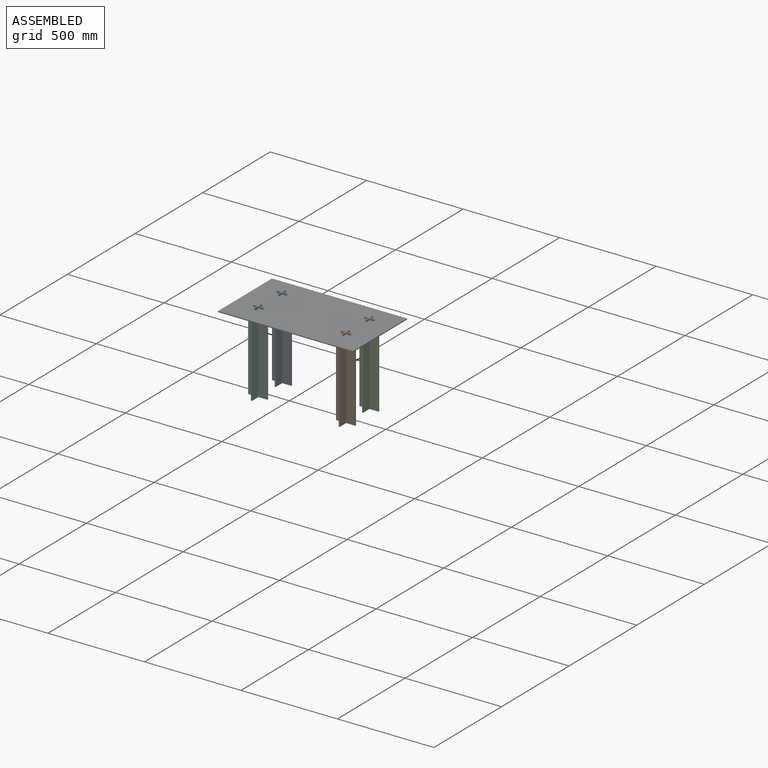
[diagram: assembled view]
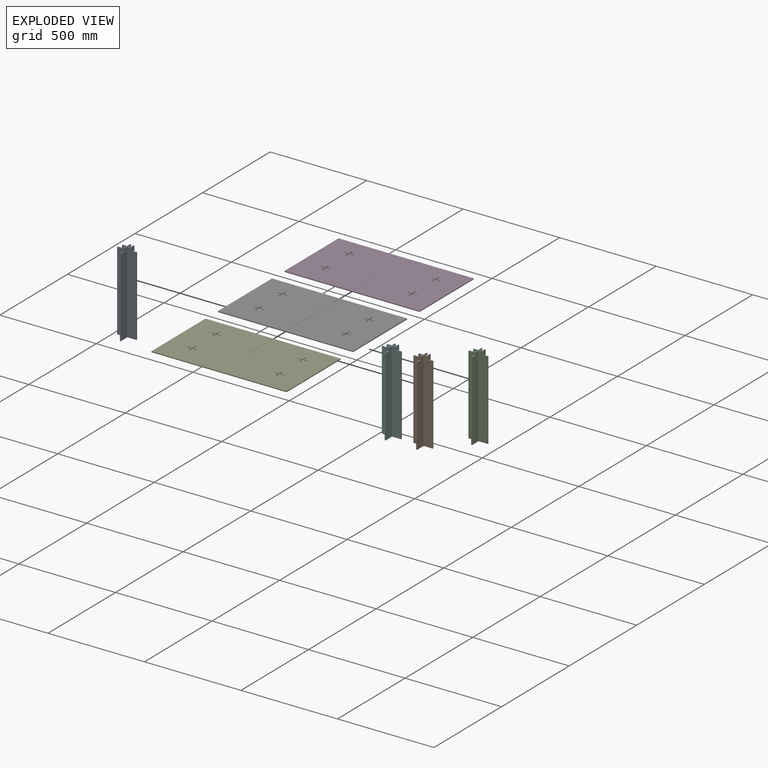
[diagram: exploded view]
GUIDED TOUR — MATED ASSEMBLY WITH SUBASSEMBLIES (Onshape document 4f906f8c0d8d849d14eea6be, AutoMate assembly 4f906f8c0d8d849d14eea6be_8393cce24d289e3eb619da18_ee5d5267eabd200aae0d3cd7_default)

This assembly has 11 component occurrences arranged in 7 top-level units: 3 individual components plus 4 subassemblies (S0, S1, S2, S3). The tour has two levels: first the top level, where each subassembly is treated as one rigid unit; then each subassembly is toured internally in its own section (nesting deeper than one subassembly level is flattened into its subassembly's section).

Components are labeled P0..P10 across the whole record; subassembly units are labeled S0..S3. A mate is a constraint between two units; its type names the relative motion it leaves free:
  FASTENED — locks the two components together rigidly (no relative motion),
  SLIDER — leaves translation along the listed axis free.
Axis/direction vectors are unit vectors and 'through' points are millimeter coordinates, both in the assembly's world frame.

TOP-LEVEL MATES (between units; each subassembly's internal mates are listed in its own section)
  1. SLIDER "Slider 1": S3 <-> P5, axis (0.000, 0.000, 1.000) through (-558.69, -146.63, 195.63) mm
  2. SLIDER "Slider 3": S2 <-> P5, axis (0.000, 0.000, 1.000) through (-103.69, 25.87, 195.63) mm
  3. SLIDER "Slider 2": S0 <-> P5, axis (0.000, 0.000, 1.000) through (-558.69, 25.87, 195.63) mm
  4. SLIDER "Slider 4": S1 <-> P5, axis (0.000, 0.000, 1.000) through (-103.69, -146.63, 195.63) mm

TOP-LEVEL ASSEMBLY ORDER
  1. P10 — the base component [order verified]
  2. P5 [order verified]
  3. P3 [order verified]
  4. S3 [order verified]
  5. S1 [order verified]
  6. S2 [order verified]
  7. S0 [order verified]
Order-tag legend:
  [order verified] — this step's position reverses a verified removal order: the component was checked to insert without passing through the ones already placed.

Of the 11 component occurrences, 11 carry the full construction recipe — the FeatureScript program that regenerates the part's solid from scratch; the rest are supplied as boundary geometry only. Each toured unit is shown spotlighted twice — assembled, then exploded with a leader line back to its socket (green = recipe-attached component, orange = geometry-only, blue = subassembly unit; the rest desaturated gray).
NOTE — document 2 of 2 of this assembly tour. The two overview renders and the header above are repeated from document 1; the component sections below continue where the previous document stopped.
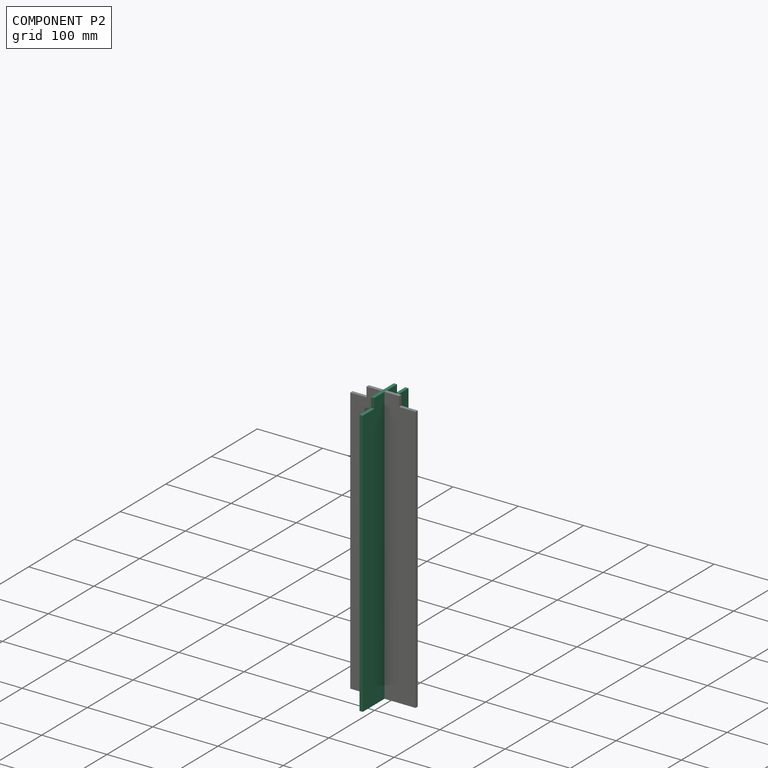
[diagram: component P2 — assembled]
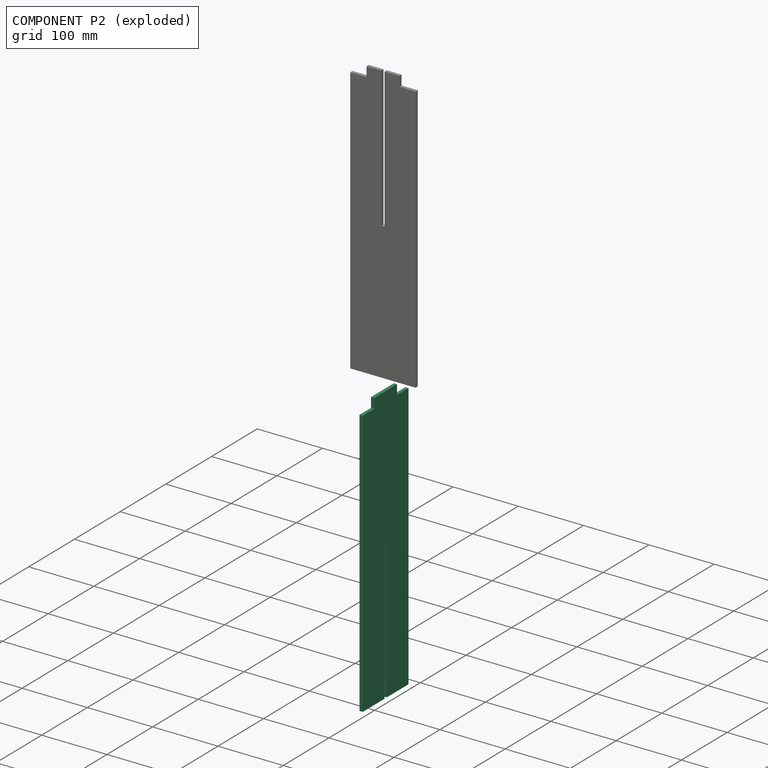
[diagram: component P2 — exploded]
COMPONENT P2 — recipe-attached (CADFS 00645660, mesh-verified: the recipe's output STEP matches this component's geometry to below the mesh-comparison resolution (tessellation chordal tolerance ~0.655 mm)).
Held by: FASTENED mate "Fastened 1" to P4; FASTENED mate "Fastened 1" to P4.
Construction recipe (FeatureScript — the CAD program that rebuilds this solid; sketch coordinates are in the units given by the * unit suffixes, e.g. mm):

FeatureScript 1511;
import(path : "onshape/std/geometry.fs", version : "1511.0");
import(path : "onshape/std/common.fs", version : "1511.0");
const mm = millimeter;
const VERTEX = EntityType.VERTEX;
const EDGE = EntityType.EDGE;
const FACE = EntityType.FACE;
const BODY = EntityType.BODY;
function v(x, y){return vector(x, y);}
function OD(order){return orderDisambiguation(order);}
function OSD(set){return originalSetDisambiguation(set);}
function TD(topology){return topologyDisambiguation(topology);}
function TDD(query){return trueDependencyDisambiguation(query);}
function sQuery(a, b, c) {return sketchEntityQuery(a, b, c);}

annotation { "Feature Type Name" : "Feature", "Feature Type Description" : "" }
export const myFeature = defineFeature(function(context is Context, id is Id, definition is map)
    precondition{}
    {
        {
            var Q0;
            Q0=qCreatedBy(makeId("Right.planeOp"),FACE);
            var sketch = newSketch(context, id + "F0", { "sketchPlane" : qUnion([Q0])});
            skLineSegment(sketch, "E0.top", {"start": v(0, 410) * mm, "end": v(-25, 410) * mm});
            skLineSegment(sketch, "E0.left", {"start": v(0, 0) * mm, "end": v(0, 410) * mm});
            skLineSegment(sketch, "E0.right", {"start": v(-100, 0) * mm, "end": v(-100, 410) * mm});
            skLineSegment(sketch, "E1.top", {"start": v(-75, 425) * mm, "end": v(-25, 425) * mm});
            skLineSegment(sketch, "E1.left", {"start": v(-75, 410) * mm, "end": v(-75, 425) * mm});
            skLineSegment(sketch, "E1.right", {"start": v(-25, 410) * mm, "end": v(-25, 425) * mm});
            skLineSegment(sketch, "E2", {"start": v(-100, 0) * mm, "end": v(-52.5, 0) * mm});
            skLineSegment(sketch, "E3.trimOffspring", {"start": v(-75, 410) * mm, "end": v(-100, 410) * mm});
            skPoint(sketch, "E4.oppositeSnap0", {"position": v(-50, 0) * mm});
            skLineSegment(sketch, "E4.bottom", {"start": v(-50, 0) * mm, "end": v(-50, 0) * mm});
            skLineSegment(sketch, "E5.top", {"start": v(-52.5, 210) * mm, "end": v(-47.5, 210) * mm});
            skLineSegment(sketch, "E5.left", {"start": v(-52.5, 0) * mm, "end": v(-52.5, 210) * mm});
            skLineSegment(sketch, "E5.right", {"start": v(-47.5, 0) * mm, "end": v(-47.5, 210) * mm});
            skLineSegment(sketch, "E6.trimOffspring", {"start": v(-47.5, 0) * mm, "end": v(0, 0) * mm});
            skSolve(sketch);
        }
        {
            var Q0;
            Q0=makeQuery(id+"F0.imprint","IMPRINT",FACE,{"disambiguationData":[TD([[makeQuery(id+"F0.imprint","IMPRINT",EDGE,{"derivedFrom":sQuery(id+"F0.wireOp",EDGE,"E0.top")}),1.0]])]});
            extrude(context, id + "F1", {"entities" : qUnion([Q0]), "depth" : 5 * mm, "offsetDistance" : 25 * mm});
        }
    });
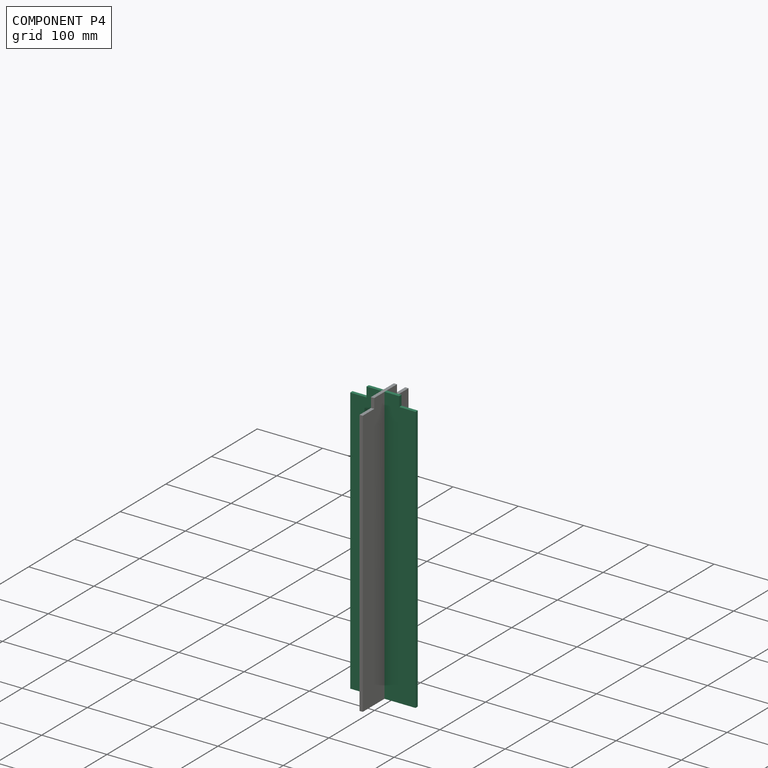
[diagram: component P4 — assembled]
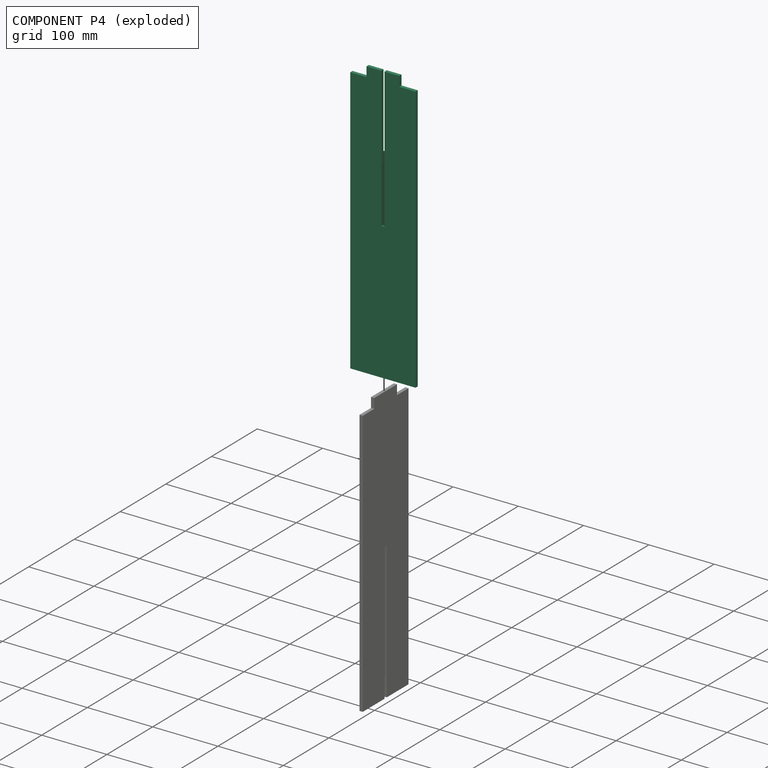
[diagram: component P4 — exploded]
COMPONENT P4 — recipe-attached (CADFS 00645660, mesh-verified: the recipe's output STEP matches this component's geometry to below the mesh-comparison resolution (tessellation chordal tolerance ~0.655 mm)).
Held by: FASTENED mate "Fastened 1" to P2; FASTENED mate "Fastened 1" to P2.
Construction recipe (FeatureScript — the CAD program that rebuilds this solid; sketch coordinates are in the units given by the * unit suffixes, e.g. mm):

FeatureScript 1511;
import(path : "onshape/std/geometry.fs", version : "1511.0");
import(path : "onshape/std/common.fs", version : "1511.0");
const mm = millimeter;
const VERTEX = EntityType.VERTEX;
const EDGE = EntityType.EDGE;
const FACE = EntityType.FACE;
const BODY = EntityType.BODY;
function v(x, y){return vector(x, y);}
function OD(order){return orderDisambiguation(order);}
function OSD(set){return originalSetDisambiguation(set);}
function TD(topology){return topologyDisambiguation(topology);}
function TDD(query){return trueDependencyDisambiguation(query);}
function sQuery(a, b, c) {return sketchEntityQuery(a, b, c);}

annotation { "Feature Type Name" : "Feature", "Feature Type Description" : "" }
export const myFeature = defineFeature(function(context is Context, id is Id, definition is map)
    precondition{}
    {
        {
            var Q0;
            Q0=qCreatedBy(makeId("Right.planeOp"),FACE);
            var sketch = newSketch(context, id + "F0", { "sketchPlane" : qUnion([Q0])});
            skLineSegment(sketch, "E0.top", {"start": v(0, 410) * mm, "end": v(-25, 410) * mm});
            skLineSegment(sketch, "E0.left", {"start": v(0, 0) * mm, "end": v(0, 410) * mm});
            skLineSegment(sketch, "E0.right", {"start": v(-100, 0) * mm, "end": v(-100, 410) * mm});
            skLineSegment(sketch, "E1.top", {"start": v(-75, 425) * mm, "end": v(-25, 425) * mm});
            skLineSegment(sketch, "E1.left", {"start": v(-75, 410) * mm, "end": v(-75, 425) * mm});
            skLineSegment(sketch, "E1.right", {"start": v(-25, 410) * mm, "end": v(-25, 425) * mm});
            skLineSegment(sketch, "E2", {"start": v(-100, 0) * mm, "end": v(-52.5, 0) * mm});
            skLineSegment(sketch, "E3.trimOffspring", {"start": v(-75, 410) * mm, "end": v(-100, 410) * mm});
            skPoint(sketch, "E4.oppositeSnap0", {"position": v(-50, 0) * mm});
            skLineSegment(sketch, "E4.bottom", {"start": v(-50, 0) * mm, "end": v(-50, 0) * mm});
            skLineSegment(sketch, "E5.top", {"start": v(-52.5, 210) * mm, "end": v(-47.5, 210) * mm});
            skLineSegment(sketch, "E5.left", {"start": v(-52.5, 0) * mm, "end": v(-52.5, 210) * mm});
            skLineSegment(sketch, "E5.right", {"start": v(-47.5, 0) * mm, "end": v(-47.5, 210) * mm});
            skLineSegment(sketch, "E6.trimOffspring", {"start": v(-47.5, 0) * mm, "end": v(0, 0) * mm});
            skSolve(sketch);
        }
        {
            var Q0;
            Q0=makeQuery(id+"F0.imprint","IMPRINT",FACE,{"disambiguationData":[TD([[makeQuery(id+"F0.imprint","IMPRINT",EDGE,{"derivedFrom":sQuery(id+"F0.wireOp",EDGE,"E0.top")}),1.0]])]});
            extrude(context, id + "F1", {"entities" : qUnion([Q0]), "depth" : 5 * mm, "offsetDistance" : 25 * mm});
        }
    });
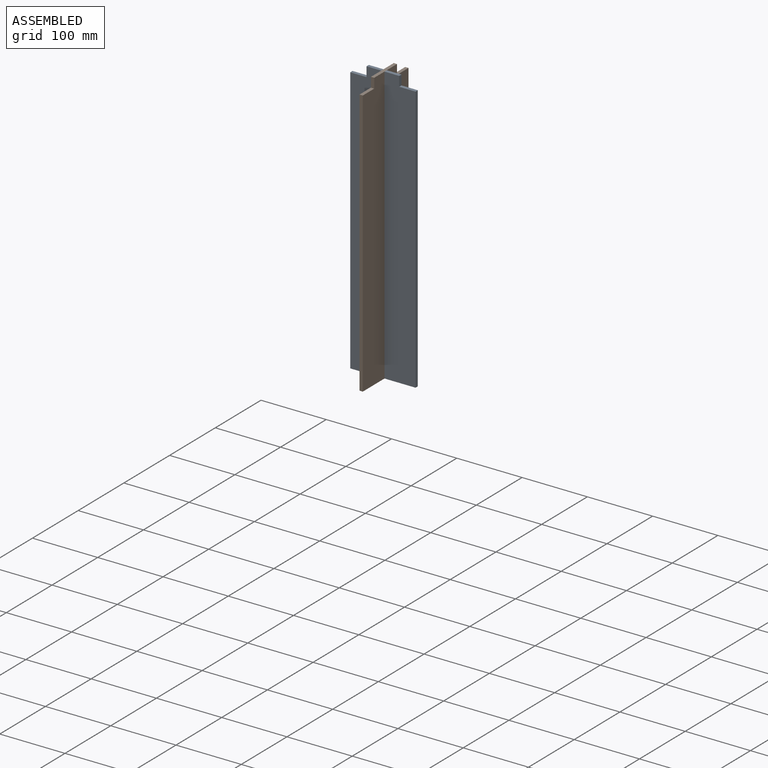
[diagram: subassembly S3 — assembled view]
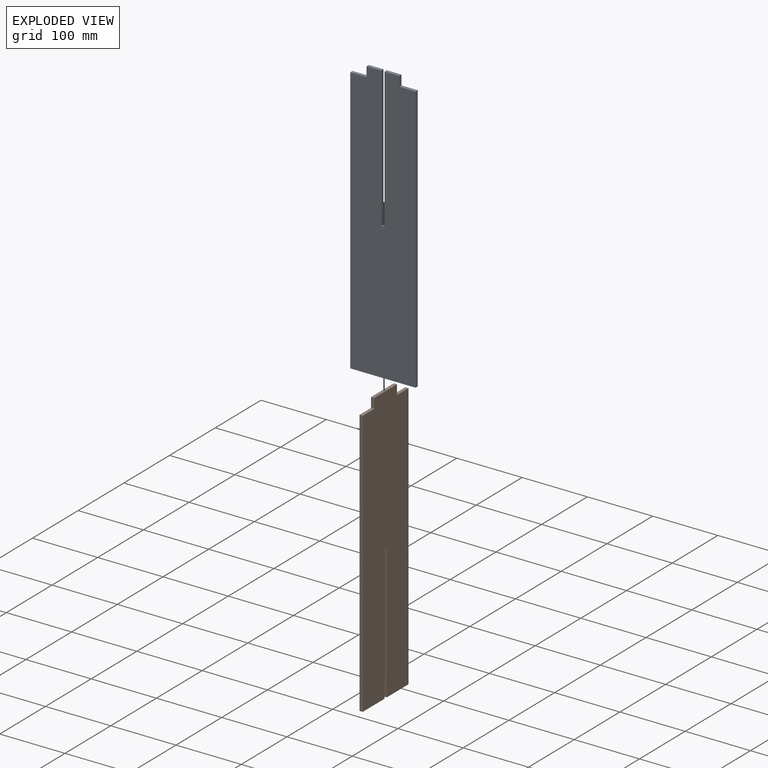
[diagram: subassembly S3 — exploded view]
SUBASSEMBLY S3 TOUR — 2 components, shown here in isolation at its own camera.

INTERNAL MATES
  1. FASTENED "Fastened 1": P7 <-> P8, direction (0.000, 0.000, 1.000) through (-558.69, -146.63, -19.37) mm
  2. FASTENED "Fastened 1": P7 <-> P8, direction (0.000, 0.000, 1.000) through (-558.69, -146.63, -19.37) mm

ASSEMBLY ORDER (within the subassembly)
  1. P7 — the base component [order heuristic]
  2. P8 [order heuristic]
Order-tag legend:
  [order heuristic] — this assembly is geometrically interlocked (no collision-free removal order exists), so components are listed in mate-graph order; insertion feasibility is not verified.
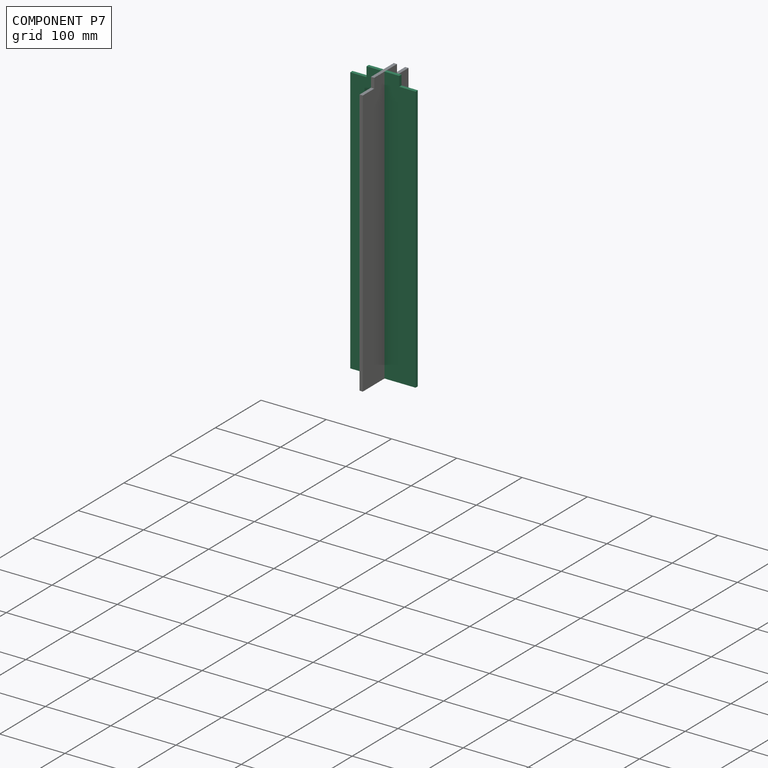
[diagram: component P7 — assembled]
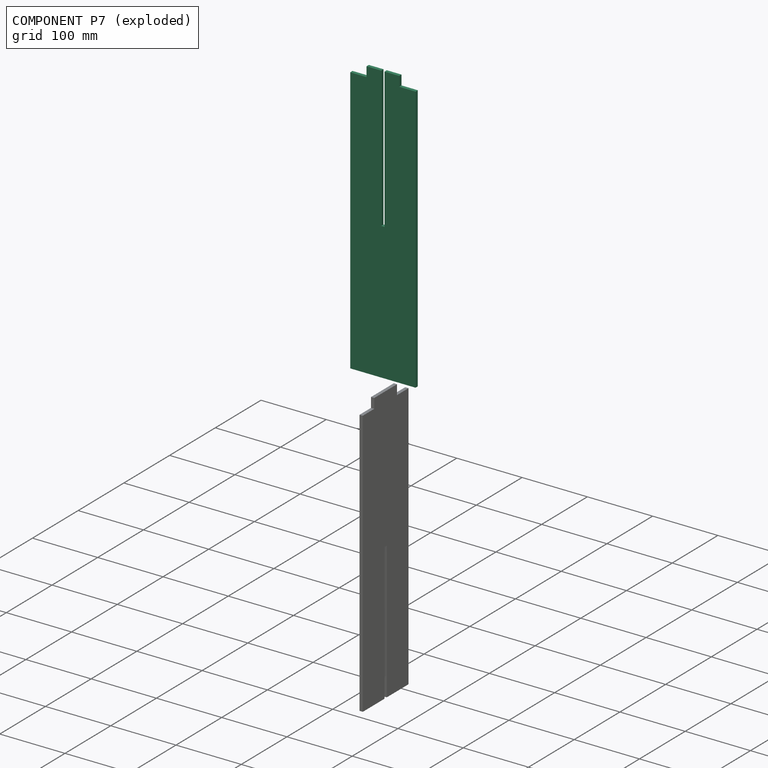
[diagram: component P7 — exploded]
COMPONENT P7 — recipe-attached (CADFS 00645660, mesh-verified: the recipe's output STEP matches this component's geometry to below the mesh-comparison resolution (tessellation chordal tolerance ~0.655 mm)).
Held by: FASTENED mate "Fastened 1" to P8; FASTENED mate "Fastened 1" to P8.
Construction recipe (FeatureScript — the CAD program that rebuilds this solid; sketch coordinates are in the units given by the * unit suffixes, e.g. mm):

FeatureScript 1511;
import(path : "onshape/std/geometry.fs", version : "1511.0");
import(path : "onshape/std/common.fs", version : "1511.0");
const mm = millimeter;
const VERTEX = EntityType.VERTEX;
const EDGE = EntityType.EDGE;
const FACE = EntityType.FACE;
const BODY = EntityType.BODY;
function v(x, y){return vector(x, y);}
function OD(order){return orderDisambiguation(order);}
function OSD(set){return originalSetDisambiguation(set);}
function TD(topology){return topologyDisambiguation(topology);}
function TDD(query){return trueDependencyDisambiguation(query);}
function sQuery(a, b, c) {return sketchEntityQuery(a, b, c);}

annotation { "Feature Type Name" : "Feature", "Feature Type Description" : "" }
export const myFeature = defineFeature(function(context is Context, id is Id, definition is map)
    precondition{}
    {
        {
            var Q0;
            Q0=qCreatedBy(makeId("Right.planeOp"),FACE);
            var sketch = newSketch(context, id + "F0", { "sketchPlane" : qUnion([Q0])});
            skLineSegment(sketch, "E0.top", {"start": v(0, 410) * mm, "end": v(-25, 410) * mm});
            skLineSegment(sketch, "E0.left", {"start": v(0, 0) * mm, "end": v(0, 410) * mm});
            skLineSegment(sketch, "E0.right", {"start": v(-100, 0) * mm, "end": v(-100, 410) * mm});
            skLineSegment(sketch, "E1.top", {"start": v(-75, 425) * mm, "end": v(-25, 425) * mm});
            skLineSegment(sketch, "E1.left", {"start": v(-75, 410) * mm, "end": v(-75, 425) * mm});
            skLineSegment(sketch, "E1.right", {"start": v(-25, 410) * mm, "end": v(-25, 425) * mm});
            skLineSegment(sketch, "E2", {"start": v(-100, 0) * mm, "end": v(-52.5, 0) * mm});
            skLineSegment(sketch, "E3.trimOffspring", {"start": v(-75, 410) * mm, "end": v(-100, 410) * mm});
            skPoint(sketch, "E4.oppositeSnap0", {"position": v(-50, 0) * mm});
            skLineSegment(sketch, "E4.bottom", {"start": v(-50, 0) * mm, "end": v(-50, 0) * mm});
            skLineSegment(sketch, "E5.top", {"start": v(-52.5, 210) * mm, "end": v(-47.5, 210) * mm});
            skLineSegment(sketch, "E5.left", {"start": v(-52.5, 0) * mm, "end": v(-52.5, 210) * mm});
            skLineSegment(sketch, "E5.right", {"start": v(-47.5, 0) * mm, "end": v(-47.5, 210) * mm});
            skLineSegment(sketch, "E6.trimOffspring", {"start": v(-47.5, 0) * mm, "end": v(0, 0) * mm});
            skSolve(sketch);
        }
        {
            var Q0;
            Q0=makeQuery(id+"F0.imprint","IMPRINT",FACE,{"disambiguationData":[TD([[makeQuery(id+"F0.imprint","IMPRINT",EDGE,{"derivedFrom":sQuery(id+"F0.wireOp",EDGE,"E0.top")}),1.0]])]});
            extrude(context, id + "F1", {"entities" : qUnion([Q0]), "depth" : 5 * mm, "offsetDistance" : 25 * mm});
        }
    });
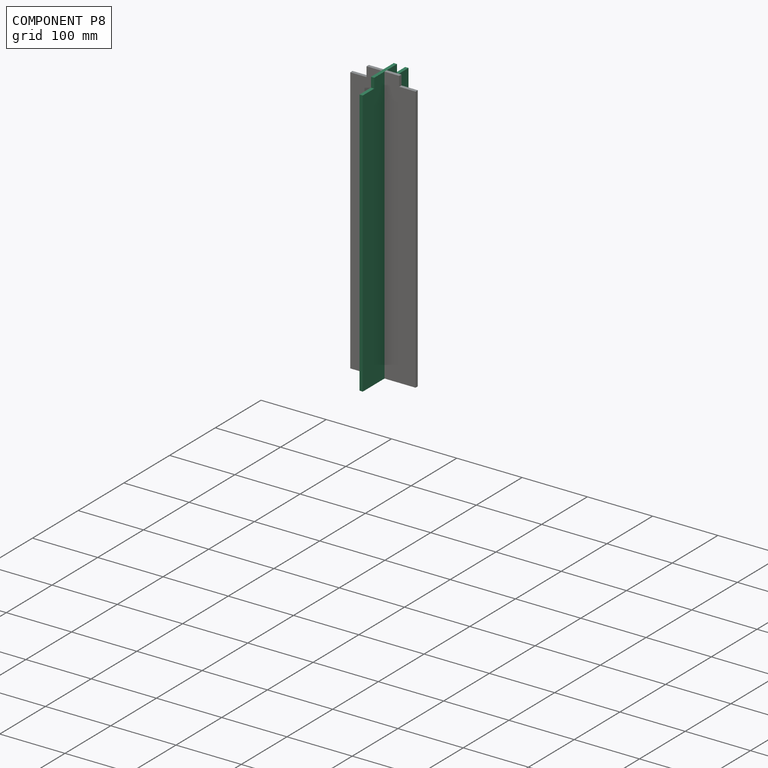
[diagram: component P8 — assembled]
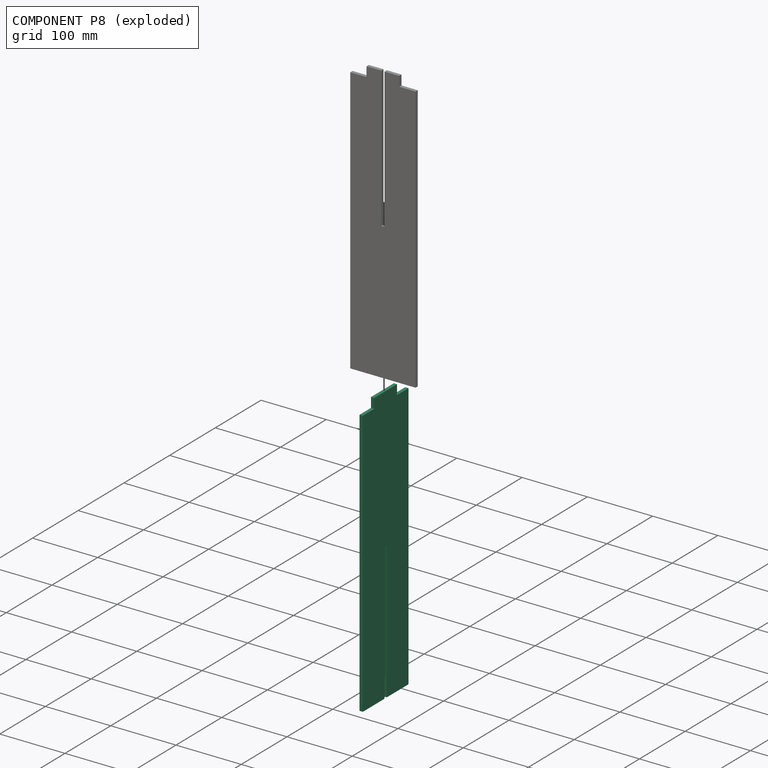
[diagram: component P8 — exploded]
COMPONENT P8 — recipe-attached (CADFS 00645660, mesh-verified: the recipe's output STEP matches this component's geometry to below the mesh-comparison resolution (tessellation chordal tolerance ~0.655 mm)).
Held by: FASTENED mate "Fastened 1" to P7; FASTENED mate "Fastened 1" to P7.
Construction recipe (FeatureScript — the CAD program that rebuilds this solid; sketch coordinates are in the units given by the * unit suffixes, e.g. mm):

FeatureScript 1511;
import(path : "onshape/std/geometry.fs", version : "1511.0");
import(path : "onshape/std/common.fs", version : "1511.0");
const mm = millimeter;
const VERTEX = EntityType.VERTEX;
const EDGE = EntityType.EDGE;
const FACE = EntityType.FACE;
const BODY = EntityType.BODY;
function v(x, y){return vector(x, y);}
function OD(order){return orderDisambiguation(order);}
function OSD(set){return originalSetDisambiguation(set);}
function TD(topology){return topologyDisambiguation(topology);}
function TDD(query){return trueDependencyDisambiguation(query);}
function sQuery(a, b, c) {return sketchEntityQuery(a, b, c);}

annotation { "Feature Type Name" : "Feature", "Feature Type Description" : "" }
export const myFeature = defineFeature(function(context is Context, id is Id, definition is map)
    precondition{}
    {
        {
            var Q0;
            Q0=qCreatedBy(makeId("Right.planeOp"),FACE);
            var sketch = newSketch(context, id + "F0", { "sketchPlane" : qUnion([Q0])});
            skLineSegment(sketch, "E0.top", {"start": v(0, 410) * mm, "end": v(-25, 410) * mm});
            skLineSegment(sketch, "E0.left", {"start": v(0, 0) * mm, "end": v(0, 410) * mm});
            skLineSegment(sketch, "E0.right", {"start": v(-100, 0) * mm, "end": v(-100, 410) * mm});
            skLineSegment(sketch, "E1.top", {"start": v(-75, 425) * mm, "end": v(-25, 425) * mm});
            skLineSegment(sketch, "E1.left", {"start": v(-75, 410) * mm, "end": v(-75, 425) * mm});
            skLineSegment(sketch, "E1.right", {"start": v(-25, 410) * mm, "end": v(-25, 425) * mm});
            skLineSegment(sketch, "E2", {"start": v(-100, 0) * mm, "end": v(-52.5, 0) * mm});
            skLineSegment(sketch, "E3.trimOffspring", {"start": v(-75, 410) * mm, "end": v(-100, 410) * mm});
            skPoint(sketch, "E4.oppositeSnap0", {"position": v(-50, 0) * mm});
            skLineSegment(sketch, "E4.bottom", {"start": v(-50, 0) * mm, "end": v(-50, 0) * mm});
            skLineSegment(sketch, "E5.top", {"start": v(-52.5, 210) * mm, "end": v(-47.5, 210) * mm});
            skLineSegment(sketch, "E5.left", {"start": v(-52.5, 0) * mm, "end": v(-52.5, 210) * mm});
            skLineSegment(sketch, "E5.right", {"start": v(-47.5, 0) * mm, "end": v(-47.5, 210) * mm});
            skLineSegment(sketch, "E6.trimOffspring", {"start": v(-47.5, 0) * mm, "end": v(0, 0) * mm});
            skSolve(sketch);
        }
        {
            var Q0;
            Q0=makeQuery(id+"F0.imprint","IMPRINT",FACE,{"disambiguationData":[TD([[makeQuery(id+"F0.imprint","IMPRINT",EDGE,{"derivedFrom":sQuery(id+"F0.wireOp",EDGE,"E0.top")}),1.0]])]});
            extrude(context, id + "F1", {"entities" : qUnion([Q0]), "depth" : 5 * mm, "offsetDistance" : 25 * mm});
        }
    });
PROVENANCE & LICENSES
Assembly (occurrences, transforms, mates, per-part STEP geometry): AutoMate dataset, Zenodo record 7776208, CC0.
Construction recipes: CADFS (HuggingFace VladPyatov/CADFS, CC-BY-4.0, layered over the ABC dataset), FeatureScript reconstruction programs keyed by ABC model id.
Join: ABC meta listings map ABC model id -> Onshape documentId; within a shared document, parts are matched by geometric signature (bounding-box dims + volume at 0.1% relative tolerance, exact B-rep face/solid counts).
Verification: 11 of this assembly's 11 components carry a recipe attachment, and every attachment is mesh-verified: the CADFS STEP and the AutoMate member STEP were compared as meshes in their shared local frame (symmetric sampled-point-to-mesh distance); worst across the 11 attachments: below the mesh-comparison resolution (tessellation chordal tolerance ~1.21 mm) on a 806 mm part.
Renders: orthographic iso camera (az 35 / el 25); the floor grid conveys scale (grid pitch printed in each image; no ruler). In the exploded view each component is displaced by its stored offset vector: the offsets alone carry the explosion direction (mate normal/axis signs are not orientation cues and do not encode it), and separation distances are assigned per mate-chain, not proportionally to assembly-order depth.
